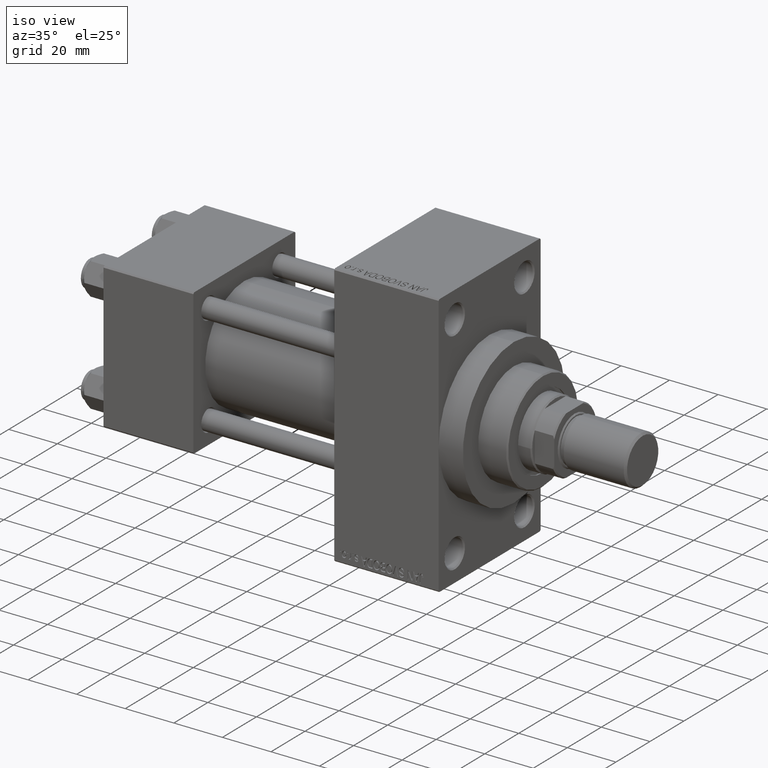
[diagram: clean part render]
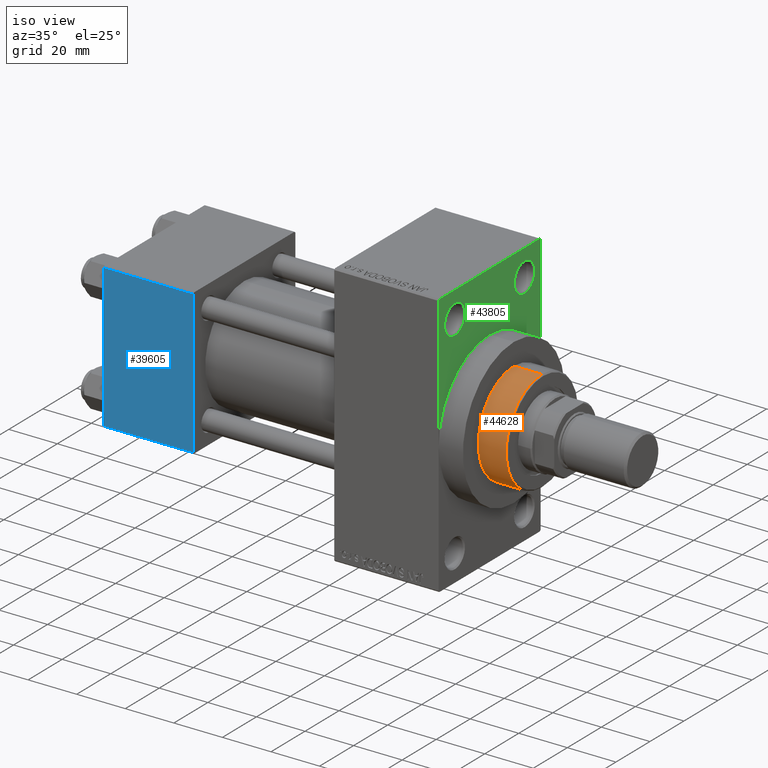
[diagram: same view with three faces highlighted in distinct colors, each labeled with its STEP entity id]
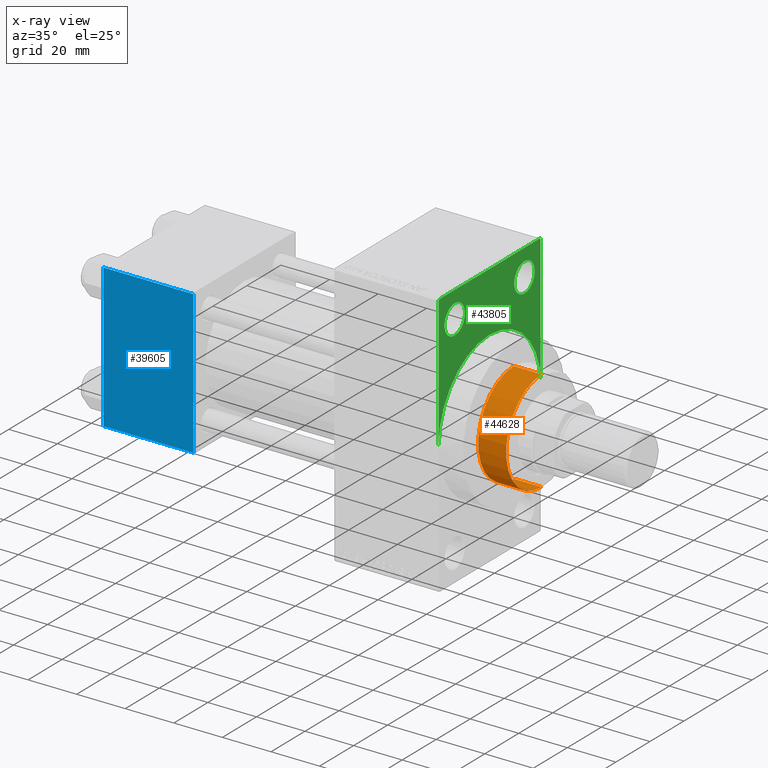
[diagram: x-ray of the same camera — body ghosted, the three highlighted faces saturated]
A machine part, iso view with three faces highlighted in distinct colors.
The next image is the same camera in x-ray (body ghosted, the three faces saturated) — at least one of them is partly hidden behind the body in this view.
Their STEP definitions:

[orange] entity #44628 — the highlighted cylindrical surface (partial cylindrical patch) has radius 21 mm, axis along (-1, 0, 0).
#726 = EDGE_CURVE ( 'NONE', #27851, #16807, #33163, .T. ) ;
#749 = EDGE_CURVE ( 'NONE', #41775, #42301, #6179, .T. ) ;
#1008 = CARTESIAN_POINT ( 'NONE',  ( 21.00000000000000000, 2.571758278209441661E-15, 54.75999999999999091 ) ) ;
#2222 = VECTOR ( 'NONE', #23510, 1000.000000000000000 ) ;
#2593 = ORIENTED_EDGE ( 'NONE', *, *, #37773, .F. ) ;
#4947 = CARTESIAN_POINT ( 'NONE',  ( -21.00000000000000000, 0.000000000000000000, 55.26000000000000512 ) ) ;
#5805 = EDGE_LOOP ( 'NONE', ( #10766, #30851, #18002, #2593 ) ) ;
#5828 = LINE ( 'NONE', #35492, #39047 ) ;
#6179 = CIRCLE ( 'NONE', #10039, 21.00000000000000000 ) ;
#7704 = AXIS2_PLACEMENT_3D ( 'NONE', #33516, #45317, #45088 ) ;
#10039 = AXIS2_PLACEMENT_3D ( 'NONE', #41461, #23343, #26260 ) ;
#10766 = ORIENTED_EDGE ( 'NONE', *, *, #726, .T. ) ;
#10823 = CARTESIAN_POINT ( 'NONE',  ( -21.00000000000000000, 0.000000000000000000, 54.75999999999999091 ) ) ;
#11718 = CARTESIAN_POINT ( 'NONE',  ( 21.00000000000000000, 2.571758278209441661E-15, 43.25999999999999801 ) ) ;
#14213 = CYLINDRICAL_SURFACE ( 'NONE', #44201, 21.00000000000000000 ) ;
#16807 = VERTEX_POINT ( 'NONE', #1008 ) ;
#17577 = FACE_OUTER_BOUND ( 'NONE', #5805, .T. ) ;
#18002 = ORIENTED_EDGE ( 'NONE', *, *, #749, .T. ) ;
#21717 = CARTESIAN_POINT ( 'NONE',  ( -21.00000000000000000, 0.000000000000000000, 43.25999999999999801 ) ) ;
#22382 = LINE ( 'NONE', #4947, #2222 ) ;
#23343 = DIRECTION ( 'NONE',  ( 0.000000000000000000, 0.000000000000000000, 1.000000000000000000 ) ) ;
#23510 = DIRECTION ( 'NONE',  ( -0.000000000000000000, -0.000000000000000000, -1.000000000000000000 ) ) ;
#26260 = DIRECTION ( 'NONE',  ( 1.000000000000000000, 0.000000000000000000, 0.000000000000000000 ) ) ;
#26669 = DIRECTION ( 'NONE',  ( -0.000000000000000000, -0.000000000000000000, -1.000000000000000000 ) ) ;
#27851 = VERTEX_POINT ( 'NONE', #10823 ) ;
#29176 = CARTESIAN_POINT ( 'NONE',  ( 0.000000000000000000, 0.000000000000000000, 55.26000000000000512 ) ) ;
#30851 = ORIENTED_EDGE ( 'NONE', *, *, #31809, .T. ) ;
#31809 = EDGE_CURVE ( 'NONE', #16807, #41775, #5828, .T. ) ;
#32304 = DIRECTION ( 'NONE',  ( -1.000000000000000000, 0.000000000000000000, 0.000000000000000000 ) ) ;
#33163 = CIRCLE ( 'NONE', #7704, 21.00000000000000000 ) ;
#33516 = CARTESIAN_POINT ( 'NONE',  ( 0.000000000000000000, 0.000000000000000000, 54.75999999999999091 ) ) ;
#35492 = CARTESIAN_POINT ( 'NONE',  ( 21.00000000000000000, 2.571758278209441661E-15, 55.26000000000000512 ) ) ;
#37773 = EDGE_CURVE ( 'NONE', #27851, #42301, #22382, .T. ) ;
#39047 = VECTOR ( 'NONE', #26669, 1000.000000000000000 ) ;
#41461 = CARTESIAN_POINT ( 'NONE',  ( 0.000000000000000000, 0.000000000000000000, 43.25999999999999801 ) ) ;
#41775 = VERTEX_POINT ( 'NONE', #11718 ) ;
#42301 = VERTEX_POINT ( 'NONE', #21717 ) ;
#44129 = DIRECTION ( 'NONE',  ( -0.000000000000000000, -0.000000000000000000, -1.000000000000000000 ) ) ;
#44201 = AXIS2_PLACEMENT_3D ( 'NONE', #29176, #44129, #32304 ) ;
#44628 = ADVANCED_FACE ( 'NONE', ( #17577 ), #14213, .T. ) ;
#45088 = DIRECTION ( 'NONE',  ( 1.000000000000000000, 0.000000000000000000, 0.000000000000000000 ) ) ;
#45317 = DIRECTION ( 'NONE',  ( 0.000000000000000000, 0.000000000000000000, -1.000000000000000000 ) ) ;

[blue] entity #39605 — the highlighted planar face has unit normal (0, 1, 0).
#1121 = CARTESIAN_POINT ( 'NONE',  ( 37.00000000000000000, -30.00000000000000000, 29.99999999999999289 ) ) ;
#2449 = CARTESIAN_POINT ( 'NONE',  ( 37.00000000000000000, -30.00000000000000000, 29.49999999999999289 ) ) ;
#4247 = CARTESIAN_POINT ( 'NONE',  ( 37.00000000000000000, -30.00000000000000000, -29.50000000000001776 ) ) ;
#4506 = PLANE ( 'NONE',  #4599 ) ;
#4599 = AXIS2_PLACEMENT_3D ( 'NONE', #1121, #15826, #14879 ) ;
#8220 = DIRECTION ( 'NONE',  ( 0.000000000000000000, 0.000000000000000000, -1.000000000000000000 ) ) ;
#8270 = VERTEX_POINT ( 'NONE', #24966 ) ;
#8912 = ORIENTED_EDGE ( 'NONE', *, *, #43297, .T. ) ;
#11007 = LINE ( 'NONE', #4247, #40672 ) ;
#13544 = DIRECTION ( 'NONE',  ( -1.000000000000000000, 0.000000000000000000, 0.000000000000000000 ) ) ;
#14879 = DIRECTION ( 'NONE',  ( 0.000000000000000000, -0.000000000000000000, 1.000000000000000000 ) ) ;
#15453 = ORIENTED_EDGE ( 'NONE', *, *, #26037, .F. ) ;
#15826 = DIRECTION ( 'NONE',  ( -0.000000000000000000, 1.000000000000000000, 0.000000000000000000 ) ) ;
#19502 = ORIENTED_EDGE ( 'NONE', *, *, #31713, .T. ) ;
#22628 = CARTESIAN_POINT ( 'NONE',  ( 0.000000000000000000, -30.00000000000000000, 29.49999999999999289 ) ) ;
#23868 = CARTESIAN_POINT ( 'NONE',  ( 0.000000000000000000, -30.00000000000000000, 29.99999999999999289 ) ) ;
#24854 = LINE ( 'NONE', #43445, #37406 ) ;
#24966 = CARTESIAN_POINT ( 'NONE',  ( 0.000000000000000000, -30.00000000000000000, -29.50000000000001776 ) ) ;
#26037 = EDGE_CURVE ( 'NONE', #37988, #47057, #24854, .T. ) ;
#27322 = CARTESIAN_POINT ( 'NONE',  ( 37.00000000000000000, -30.00000000000000000, 29.49999999999999289 ) ) ;
#29862 = VECTOR ( 'NONE', #13544, 1000.000000000000000 ) ;
#31713 = EDGE_CURVE ( 'NONE', #8270, #47057, #11007, .T. ) ;
#33235 = CARTESIAN_POINT ( 'NONE',  ( 37.00000000000000000, -30.00000000000000000, -29.50000000000001776 ) ) ;
#33466 = FACE_OUTER_BOUND ( 'NONE', #34609, .T. ) ;
#33909 = DIRECTION ( 'NONE',  ( 1.000000000000000000, 0.000000000000000000, 0.000000000000000000 ) ) ;
#34609 = EDGE_LOOP ( 'NONE', ( #8912, #19502, #15453, #43886 ) ) ;
#34805 = EDGE_CURVE ( 'NONE', #37988, #45965, #35973, .T. ) ;
#35953 = DIRECTION ( 'NONE',  ( 0.000000000000000000, 0.000000000000000000, -1.000000000000000000 ) ) ;
#35973 = LINE ( 'NONE', #2449, #29862 ) ;
#37406 = VECTOR ( 'NONE', #35953, 1000.000000000000000 ) ;
#37988 = VERTEX_POINT ( 'NONE', #27322 ) ;
#39605 = ADVANCED_FACE ( 'NONE', ( #33466 ), #4506, .F. ) ;
#40672 = VECTOR ( 'NONE', #33909, 1000.000000000000000 ) ;
#40939 = VECTOR ( 'NONE', #8220, 1000.000000000000000 ) ;
#43297 = EDGE_CURVE ( 'NONE', #45965, #8270, #45363, .T. ) ;
#43445 = CARTESIAN_POINT ( 'NONE',  ( 37.00000000000000000, -30.00000000000000000, 29.99999999999999289 ) ) ;
#43886 = ORIENTED_EDGE ( 'NONE', *, *, #34805, .T. ) ;
#45363 = LINE ( 'NONE', #23868, #40939 ) ;
#45965 = VERTEX_POINT ( 'NONE', #22628 ) ;
#47057 = VERTEX_POINT ( 'NONE', #33235 ) ;

[green] entity #43805 — the highlighted planar face has unit normal (-1, 0, 0).
#174 = DIRECTION ( 'NONE',  ( 0.000000000000000000, 0.000000000000000000, 1.000000000000000000 ) ) ;
#363 = CIRCLE ( 'NONE', #36555, 6.000000000000088818 ) ;
#662 = CARTESIAN_POINT ( 'NONE',  ( 138.0000000000000000, 0.000000000000000000, 0.000000000000000000 ) ) ;
#859 = DIRECTION ( 'NONE',  ( -1.000000000000000000, 0.000000000000000000, -0.000000000000000000 ) ) ;
#1225 = CARTESIAN_POINT ( 'NONE',  ( 138.0000000000000000, 29.99999999999999645, 54.49999999999999289 ) ) ;
#1670 = AXIS2_PLACEMENT_3D ( 'NONE', #16514, #859, #12184 ) ;
#3795 = CARTESIAN_POINT ( 'NONE',  ( 138.0000000000000000, 20.50000000000000000, 43.50000000000000000 ) ) ;
#3912 = AXIS2_PLACEMENT_3D ( 'NONE', #42680, #11884, #28199 ) ;
#5416 = FACE_BOUND ( 'NONE', #22804, .T. ) ;
#5575 = CIRCLE ( 'NONE', #17904, 30.00000000000000000 ) ;
#6053 = CARTESIAN_POINT ( 'NONE',  ( 138.0000000000000000, 29.50000000000002132, 54.49999999999999289 ) ) ;
#7317 = ORIENTED_EDGE ( 'NONE', *, *, #41510, .T. ) ;
#8010 = DIRECTION ( 'NONE',  ( 0.000000000000000000, 0.000000000000000000, 1.000000000000000000 ) ) ;
#8126 = CARTESIAN_POINT ( 'NONE',  ( 138.0000000000000000, -30.00000000000000000, 53.99999999999997158 ) ) ;
#8187 = EDGE_CURVE ( 'NONE', #19175, #19648, #45539, .T. ) ;
#8543 = CARTESIAN_POINT ( 'NONE',  ( 138.0000000000000000, 29.99999999999999645, 53.99999999999999289 ) ) ;
#8701 = LINE ( 'NONE', #1225, #20990 ) ;
#8861 = DIRECTION ( 'NONE',  ( 0.000000000000000000, 0.000000000000000000, 1.000000000000000000 ) ) ;
#9064 = LINE ( 'NONE', #34864, #24969 ) ;
#9141 = ORIENTED_EDGE ( 'NONE', *, *, #17107, .T. ) ;
#9788 = VERTEX_POINT ( 'NONE', #6053 ) ;
#9866 = DIRECTION ( 'NONE',  ( 0.000000000000000000, -0.7071067811865279218, 0.7071067811865671127 ) ) ;
#9906 = VECTOR ( 'NONE', #24895, 1000.000000000000000 ) ;
#9948 = LINE ( 'NONE', #24654, #9906 ) ;
#10587 = EDGE_CURVE ( 'NONE', #47498, #41498, #8701, .T. ) ;
#11101 = CARTESIAN_POINT ( 'NONE',  ( 138.0000000000000000, 20.50000000000000000, 43.50000000000000000 ) ) ;
#11641 = VERTEX_POINT ( 'NONE', #45099 ) ;
#11884 = DIRECTION ( 'NONE',  ( 1.000000000000000000, 0.000000000000000000, 0.000000000000000000 ) ) ;
#11958 = FACE_OUTER_BOUND ( 'NONE', #32105, .T. ) ;
#11992 = DIRECTION ( 'NONE',  ( 0.000000000000000000, 0.000000000000000000, -1.000000000000000000 ) ) ;
#12084 = DIRECTION ( 'NONE',  ( -1.000000000000000000, 0.000000000000000000, -0.000000000000000000 ) ) ;
#12184 = DIRECTION ( 'NONE',  ( -0.000000000000000000, 0.000000000000000000, 1.000000000000000000 ) ) ;
#13885 = EDGE_CURVE ( 'NONE', #11641, #24407, #9064, .T. ) ;
#14598 = EDGE_CURVE ( 'NONE', #18039, #40356, #363, .T. ) ;
#14679 = CIRCLE ( 'NONE', #41652, 6.000000000000088818 ) ;
#15040 = ORIENTED_EDGE ( 'NONE', *, *, #18201, .F. ) ;
#16278 = DIRECTION ( 'NONE',  ( -0.000000000000000000, -0.7071067811865451302, -0.7071067811865500152 ) ) ;
#16514 = CARTESIAN_POINT ( 'NONE',  ( 138.0000000000000000, 0.000000000000000000, 0.000000000000000000 ) ) ;
#17107 = EDGE_CURVE ( 'NONE', #19648, #19175, #22089, .T. ) ;
#17904 = AXIS2_PLACEMENT_3D ( 'NONE', #662, #29629, #11992 ) ;
#18039 = VERTEX_POINT ( 'NONE', #32046 ) ;
#18116 = CARTESIAN_POINT ( 'NONE',  ( 138.0000000000000000, 20.50000000000000000, 49.50000000000008527 ) ) ;
#18201 = EDGE_CURVE ( 'NONE', #41498, #47685, #5575, .T. ) ;
#18873 = ORIENTED_EDGE ( 'NONE', *, *, #14598, .T. ) ;
#19175 = VERTEX_POINT ( 'NONE', #18116 ) ;
#19648 = VERTEX_POINT ( 'NONE', #25778 ) ;
#19754 = CARTESIAN_POINT ( 'NONE',  ( 138.0000000000000000, 29.50000000000002132, 54.49999999999999289 ) ) ;
#19812 = ORIENTED_EDGE ( 'NONE', *, *, #8187, .T. ) ;
#20990 = VECTOR ( 'NONE', #35221, 1000.000000000000000 ) ;
#21186 = CARTESIAN_POINT ( 'NONE',  ( 138.0000000000000000, -30.00000000000000000, 0.000000000000000000 ) ) ;
#21770 = ORIENTED_EDGE ( 'NONE', *, *, #37958, .T. ) ;
#22089 = CIRCLE ( 'NONE', #42871, 6.000000000000088818 ) ;
#22148 = ORIENTED_EDGE ( 'NONE', *, *, #41243, .F. ) ;
#22804 = EDGE_LOOP ( 'NONE', ( #7317, #18873 ) ) ;
#22811 = FACE_BOUND ( 'NONE', #36032, .T. ) ;
#23375 = EDGE_CURVE ( 'NONE', #47498, #9788, #44415, .T. ) ;
#24407 = VERTEX_POINT ( 'NONE', #8126 ) ;
#24654 = CARTESIAN_POINT ( 'NONE',  ( 138.0000000000000000, 29.99999999999999645, 54.49999999999999289 ) ) ;
#24818 = CARTESIAN_POINT ( 'NONE',  ( 138.0000000000000000, -20.50000000000000000, 37.49999999999990763 ) ) ;
#24895 = DIRECTION ( 'NONE',  ( 0.000000000000000000, -1.000000000000000000, 1.156482317317871478E-16 ) ) ;
#24969 = VECTOR ( 'NONE', #16278, 1000.000000000000114 ) ;
#25768 = CARTESIAN_POINT ( 'NONE',  ( 138.0000000000000000, 30.00000000000000000, 0.000000000000000000 ) ) ;
#25778 = CARTESIAN_POINT ( 'NONE',  ( 138.0000000000000000, 20.50000000000000000, 37.49999999999990763 ) ) ;
#26133 = CARTESIAN_POINT ( 'NONE',  ( 138.0000000000000000, -30.00000000000000000, 54.50000000000000000 ) ) ;
#26573 = ORIENTED_EDGE ( 'NONE', *, *, #13885, .T. ) ;
#26893 = PLANE ( 'NONE',  #1670 ) ;
#27901 = CARTESIAN_POINT ( 'NONE',  ( 138.0000000000000000, -20.50000000000000000, 43.50000000000000000 ) ) ;
#28199 = DIRECTION ( 'NONE',  ( 0.000000000000000000, 0.000000000000000000, -1.000000000000000000 ) ) ;
#28571 = CIRCLE ( 'NONE', #3912, 30.00000000000000000 ) ;
#29629 = DIRECTION ( 'NONE',  ( 1.000000000000000000, 0.000000000000000000, 0.000000000000000000 ) ) ;
#30625 = ORIENTED_EDGE ( 'NONE', *, *, #23375, .T. ) ;
#32046 = CARTESIAN_POINT ( 'NONE',  ( 138.0000000000000000, -20.50000000000000000, 49.50000000000008527 ) ) ;
#32105 = EDGE_LOOP ( 'NONE', ( #43454, #26573, #21770, #22148, #15040, #44001, #30625 ) ) ;
#33228 = DIRECTION ( 'NONE',  ( -1.000000000000000000, 0.000000000000000000, -0.000000000000000000 ) ) ;
#33389 = LINE ( 'NONE', #26133, #35346 ) ;
#34864 = CARTESIAN_POINT ( 'NONE',  ( 138.0000000000000000, -30.00000000000000000, 53.99999999999997158 ) ) ;
#35221 = DIRECTION ( 'NONE',  ( 0.000000000000000000, 0.000000000000000000, -1.000000000000000000 ) ) ;
#35346 = VECTOR ( 'NONE', #44255, 1000.000000000000000 ) ;
#35779 = CARTESIAN_POINT ( 'NONE',  ( 138.0000000000000000, 0.000000000000000000, 30.00000000000000000 ) ) ;
#36032 = EDGE_LOOP ( 'NONE', ( #9141, #19812 ) ) ;
#36515 = EDGE_CURVE ( 'NONE', #9788, #11641, #9948, .T. ) ;
#36555 = AXIS2_PLACEMENT_3D ( 'NONE', #45143, #12084, #8010 ) ;
#36579 = VECTOR ( 'NONE', #9866, 1000.000000000000000 ) ;
#36673 = DIRECTION ( 'NONE',  ( 0.000000000000000000, 0.000000000000000000, 1.000000000000000000 ) ) ;
#37077 = AXIS2_PLACEMENT_3D ( 'NONE', #3795, #33228, #174 ) ;
#37623 = DIRECTION ( 'NONE',  ( -1.000000000000000000, 0.000000000000000000, -0.000000000000000000 ) ) ;
#37958 = EDGE_CURVE ( 'NONE', #24407, #40376, #33389, .T. ) ;
#40356 = VERTEX_POINT ( 'NONE', #24818 ) ;
#40376 = VERTEX_POINT ( 'NONE', #21186 ) ;
#41243 = EDGE_CURVE ( 'NONE', #47685, #40376, #28571, .T. ) ;
#41498 = VERTEX_POINT ( 'NONE', #25768 ) ;
#41510 = EDGE_CURVE ( 'NONE', #40356, #18039, #14679, .T. ) ;
#41652 = AXIS2_PLACEMENT_3D ( 'NONE', #27901, #42626, #8861 ) ;
#42626 = DIRECTION ( 'NONE',  ( -1.000000000000000000, 0.000000000000000000, -0.000000000000000000 ) ) ;
#42680 = CARTESIAN_POINT ( 'NONE',  ( 138.0000000000000000, 0.000000000000000000, 0.000000000000000000 ) ) ;
#42871 = AXIS2_PLACEMENT_3D ( 'NONE', #11101, #37623, #36673 ) ;
#43454 = ORIENTED_EDGE ( 'NONE', *, *, #36515, .T. ) ;
#43805 = ADVANCED_FACE ( 'NONE', ( #5416, #22811, #11958 ), #26893, .F. ) ;
#44001 = ORIENTED_EDGE ( 'NONE', *, *, #10587, .F. ) ;
#44255 = DIRECTION ( 'NONE',  ( 0.000000000000000000, 0.000000000000000000, -1.000000000000000000 ) ) ;
#44415 = LINE ( 'NONE', #19754, #36579 ) ;
#45099 = CARTESIAN_POINT ( 'NONE',  ( 138.0000000000000000, -29.49999999999997513, 54.50000000000000000 ) ) ;
#45143 = CARTESIAN_POINT ( 'NONE',  ( 138.0000000000000000, -20.50000000000000000, 43.50000000000000000 ) ) ;
#45539 = CIRCLE ( 'NONE', #37077, 6.000000000000088818 ) ;
#47498 = VERTEX_POINT ( 'NONE', #8543 ) ;
#47685 = VERTEX_POINT ( 'NONE', #35779 ) ;